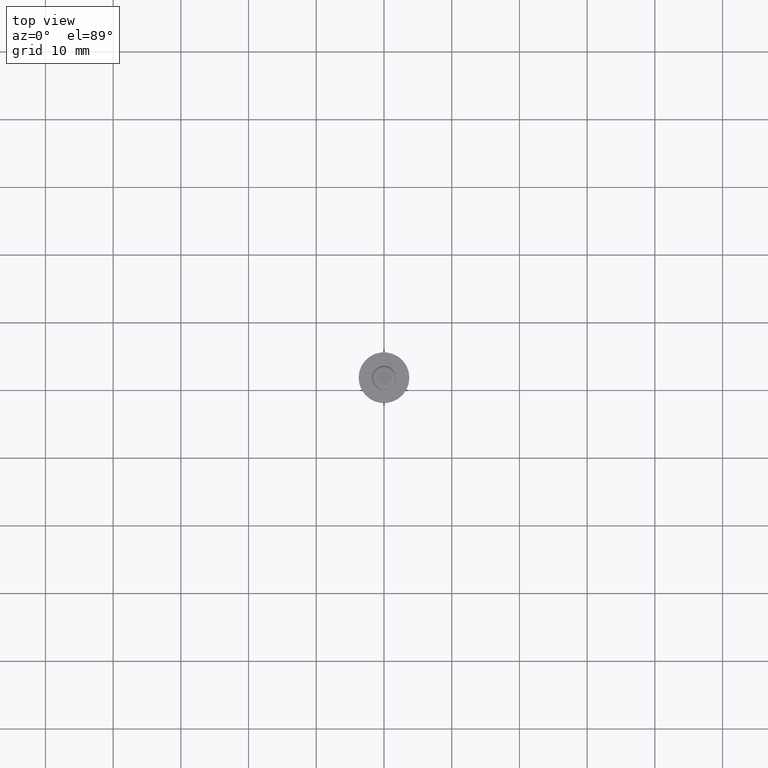
[diagram: clean part render]
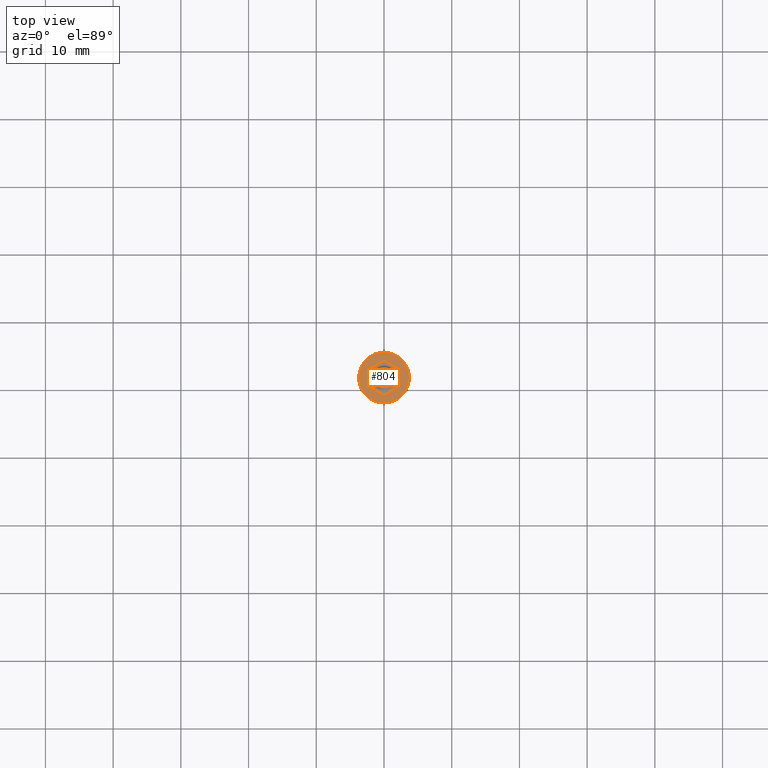
[diagram: same view with one face highlighted and labeled with its STEP entity id]
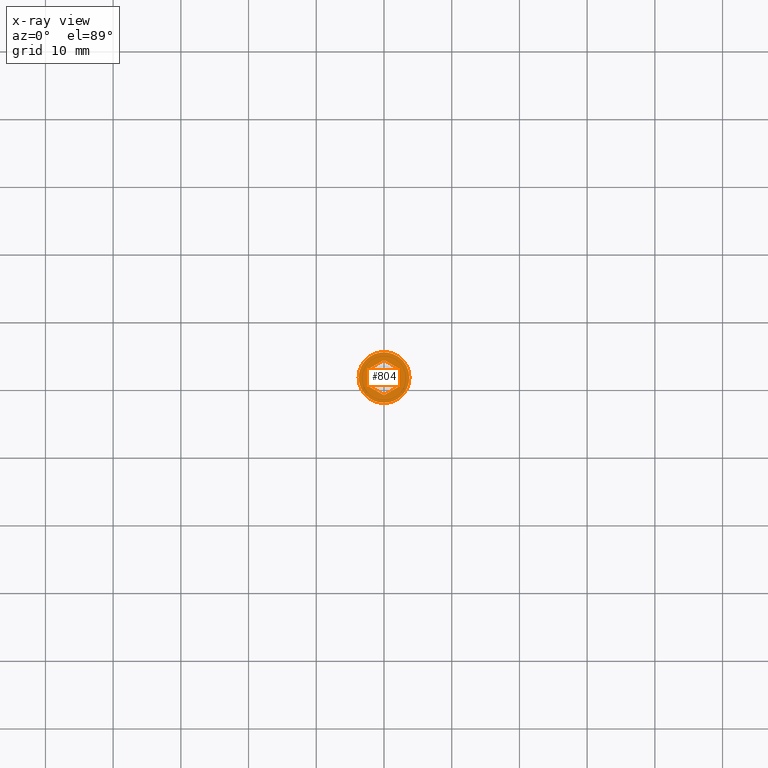
[diagram: x-ray of the same camera — body ghosted, the highlighted face saturated]
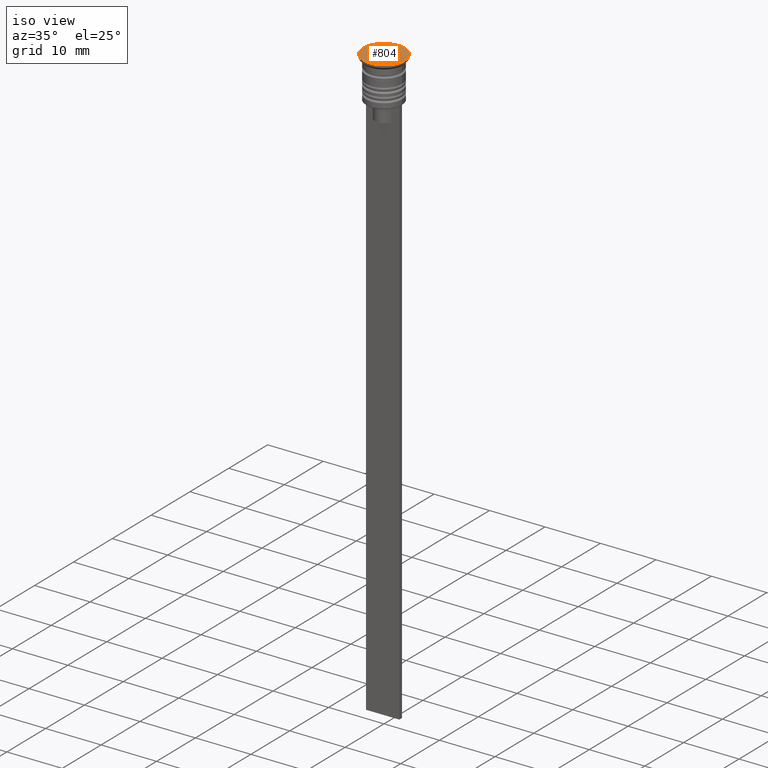
[diagram: same view with one face highlighted and labeled with its STEP entity id]
A machine part, top view. The second image highlights one B-rep face of the part: STEP entity #804.
The next image is the same camera in x-ray: the body ghosted, the highlighted face saturated — about 0% of this face is hidden behind the body in this view.
A second angle (iso view) of the same face is appended — the face is thin or edge-on in the first view.
In plain terms, the highlighted planar face has unit normal (0, -0, 1).
Its self-contained STEP definition (entity closure, byte-faithful):
#36 = VERTEX_POINT ( 'NONE', #459 ) ;
#61 = FACE_OUTER_BOUND ( 'NONE', #1870, .T. ) ;
#79 = DIRECTION ( 'NONE',  ( 0.8660254037844387076, -0.4999999999999998335, 0.000000000000000000 ) ) ;
#94 = VECTOR ( 'NONE', #1526, 1000.000000000000000 ) ;
#138 = ORIENTED_EDGE ( 'NONE', *, *, #534, .F. ) ;
#280 = DIRECTION ( 'NONE',  ( 0.000000000000000000, -0.000000000000000000, 1.000000000000000000 ) ) ;
#331 = VECTOR ( 'NONE', #2020, 1000.000000000000000 ) ;
#459 = CARTESIAN_POINT ( 'NONE',  ( 0.000000000000000000, 2.598076211353316012, 0.000000000000000000 ) ) ;
#488 = CARTESIAN_POINT ( 'NONE',  ( 2.250000000000000444, 1.299038105676659116, 0.000000000000000000 ) ) ;
#511 = ORIENTED_EDGE ( 'NONE', *, *, #1733, .F. ) ;
#534 = EDGE_CURVE ( 'NONE', #865, #1208, #1706, .T. ) ;
#535 = CARTESIAN_POINT ( 'NONE',  ( 2.224527942369933556E-16, -2.598076211353316456, 0.000000000000000000 ) ) ;
#536 = CARTESIAN_POINT ( 'NONE',  ( -2.250000000000000888, 1.299038105676658228, 0.000000000000000000 ) ) ;
#558 = VECTOR ( 'NONE', #2181, 1000.000000000000000 ) ;
#685 = LINE ( 'NONE', #703, #1925 ) ;
#703 = CARTESIAN_POINT ( 'NONE',  ( 2.250000000000000000, -1.299038105676658228, 0.000000000000000000 ) ) ;
#710 = CARTESIAN_POINT ( 'NONE',  ( 2.250000000000000444, 1.299038105676659116, 0.000000000000000000 ) ) ;
#769 = CARTESIAN_POINT ( 'NONE',  ( -3.750000000000000000, 4.592425496802573972E-16, 0.000000000000000000 ) ) ;
#804 = ADVANCED_FACE ( 'NONE', ( #1576, #61 ), #2077, .T. ) ;
#824 = CARTESIAN_POINT ( 'NONE',  ( 2.224527942369933556E-16, -2.598076211353316456, 0.000000000000000000 ) ) ;
#847 = LINE ( 'NONE', #488, #558 ) ;
#865 = VERTEX_POINT ( 'NONE', #824 ) ;
#882 = CARTESIAN_POINT ( 'NONE',  ( -2.250000000000000888, 1.299038105676658228, 0.000000000000000000 ) ) ;
#949 = VERTEX_POINT ( 'NONE', #710 ) ;
#960 = CARTESIAN_POINT ( 'NONE',  ( 2.250000000000000000, -1.299038105676658228, 0.000000000000000000 ) ) ;
#1118 = DIRECTION ( 'NONE',  ( -0.000000000000000000, -0.000000000000000000, 1.000000000000000000 ) ) ;
#1185 = LINE ( 'NONE', #536, #94 ) ;
#1207 = EDGE_CURVE ( 'NONE', #1963, #2137, #1897, .T. ) ;
#1208 = VERTEX_POINT ( 'NONE', #960 ) ;
#1222 = AXIS2_PLACEMENT_3D ( 'NONE', #1961, #1118, #1823 ) ;
#1243 = LINE ( 'NONE', #1393, #1409 ) ;
#1245 = ORIENTED_EDGE ( 'NONE', *, *, #1207, .T. ) ;
#1309 = DIRECTION ( 'NONE',  ( -0.8660254037844387076, -0.4999999999999999445, 0.000000000000000000 ) ) ;
#1312 = DIRECTION ( 'NONE',  ( -0.000000000000000000, -0.000000000000000000, 1.000000000000000000 ) ) ;
#1341 = ORIENTED_EDGE ( 'NONE', *, *, #1483, .F. ) ;
#1346 = LINE ( 'NONE', #1489, #1821 ) ;
#1374 = AXIS2_PLACEMENT_3D ( 'NONE', #1782, #1312, #1979 ) ;
#1384 = EDGE_LOOP ( 'NONE', ( #1712, #511, #138, #1341, #1387, #1625 ) ) ;
#1387 = ORIENTED_EDGE ( 'NONE', *, *, #1780, .F. ) ;
#1393 = CARTESIAN_POINT ( 'NONE',  ( -2.250000000000000888, -1.299038105676658228, 0.000000000000000000 ) ) ;
#1409 = VECTOR ( 'NONE', #79, 1000.000000000000000 ) ;
#1428 = VERTEX_POINT ( 'NONE', #882 ) ;
#1470 = EDGE_CURVE ( 'NONE', #949, #36, #847, .T. ) ;
#1483 = EDGE_CURVE ( 'NONE', #1842, #865, #1243, .T. ) ;
#1489 = CARTESIAN_POINT ( 'NONE',  ( 0.000000000000000000, 2.598076211353316456, 0.000000000000000000 ) ) ;
#1526 = DIRECTION ( 'NONE',  ( 0.000000000000000000, -1.000000000000000000, 0.000000000000000000 ) ) ;
#1549 = CIRCLE ( 'NONE', #1374, 3.750000000000000000 ) ;
#1576 = FACE_BOUND ( 'NONE', #1384, .T. ) ;
#1625 = ORIENTED_EDGE ( 'NONE', *, *, #2071, .F. ) ;
#1706 = LINE ( 'NONE', #535, #331 ) ;
#1709 = EDGE_CURVE ( 'NONE', #2137, #1963, #1549, .T. ) ;
#1712 = ORIENTED_EDGE ( 'NONE', *, *, #1470, .F. ) ;
#1733 = EDGE_CURVE ( 'NONE', #1208, #949, #685, .T. ) ;
#1735 = DIRECTION ( 'NONE',  ( 1.669238443041287429E-16, 1.000000000000000000, 0.000000000000000000 ) ) ;
#1752 = CARTESIAN_POINT ( 'NONE',  ( 0.000000000000000000, 0.000000000000000000, 0.000000000000000000 ) ) ;
#1780 = EDGE_CURVE ( 'NONE', #1428, #1842, #1185, .T. ) ;
#1782 = CARTESIAN_POINT ( 'NONE',  ( 0.000000000000000000, 0.000000000000000000, 0.000000000000000000 ) ) ;
#1821 = VECTOR ( 'NONE', #1309, 1000.000000000000000 ) ;
#1823 = DIRECTION ( 'NONE',  ( 1.000000000000000000, 0.000000000000000000, 0.000000000000000000 ) ) ;
#1842 = VERTEX_POINT ( 'NONE', #2069 ) ;
#1870 = EDGE_LOOP ( 'NONE', ( #2033, #1245 ) ) ;
#1897 = CIRCLE ( 'NONE', #1222, 3.750000000000000000 ) ;
#1925 = VECTOR ( 'NONE', #1735, 1000.000000000000000 ) ;
#1961 = CARTESIAN_POINT ( 'NONE',  ( 0.000000000000000000, 0.000000000000000000, 0.000000000000000000 ) ) ;
#1963 = VERTEX_POINT ( 'NONE', #769 ) ;
#1979 = DIRECTION ( 'NONE',  ( 1.000000000000000000, 0.000000000000000000, 0.000000000000000000 ) ) ;
#1994 = AXIS2_PLACEMENT_3D ( 'NONE', #1752, #280, #2141 ) ;
#2000 = CARTESIAN_POINT ( 'NONE',  ( 3.750000000000000000, 0.000000000000000000, 0.000000000000000000 ) ) ;
#2020 = DIRECTION ( 'NONE',  ( 0.8660254037844385966, 0.5000000000000001110, 0.000000000000000000 ) ) ;
#2033 = ORIENTED_EDGE ( 'NONE', *, *, #1709, .T. ) ;
#2069 = CARTESIAN_POINT ( 'NONE',  ( -2.250000000000000888, -1.299038105676658228, 0.000000000000000000 ) ) ;
#2071 = EDGE_CURVE ( 'NONE', #36, #1428, #1346, .T. ) ;
#2077 = PLANE ( 'NONE',  #1994 ) ;
#2137 = VERTEX_POINT ( 'NONE', #2000 ) ;
#2141 = DIRECTION ( 'NONE',  ( 1.000000000000000000, 0.000000000000000000, 0.000000000000000000 ) ) ;
#2181 = DIRECTION ( 'NONE',  ( -0.8660254037844388186, 0.4999999999999997224, 0.000000000000000000 ) ) ;